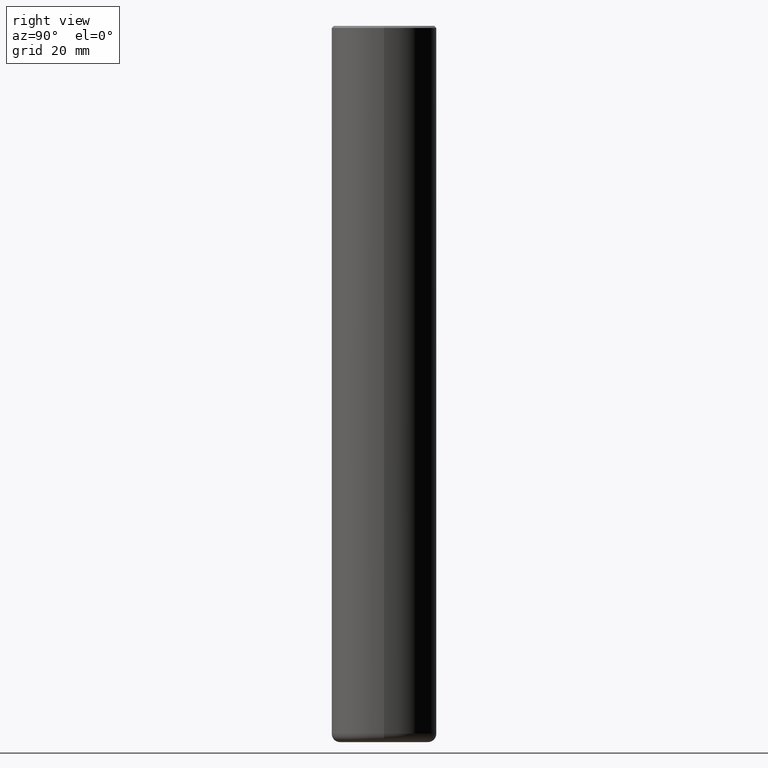
[diagram: clean part render]
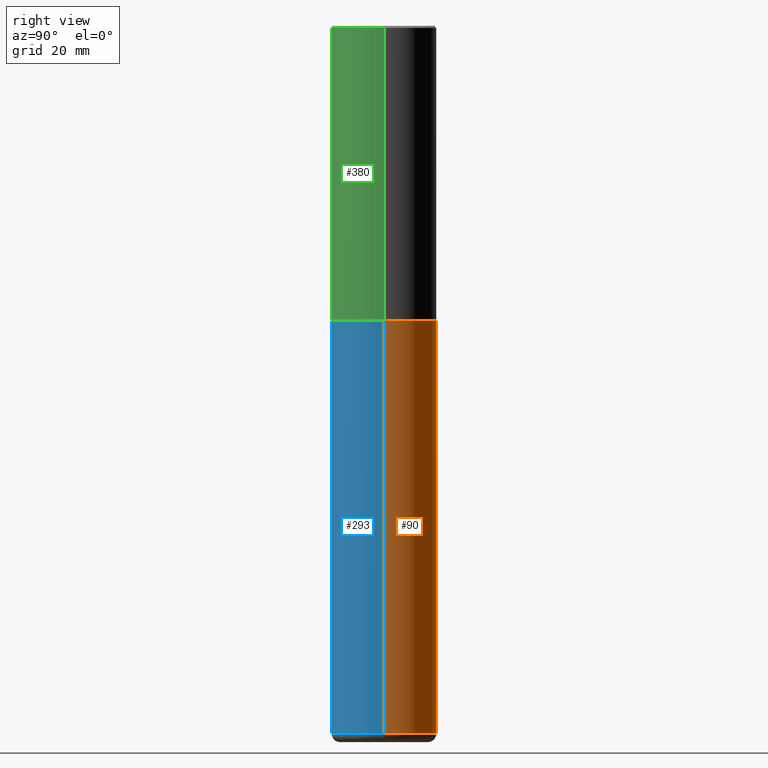
[diagram: same view with three faces highlighted in distinct colors, each labeled with its STEP entity id]
A machine part, right view with three faces highlighted in distinct colors.
Their STEP definitions:

[orange] entity #90 — the highlighted cylindrical surface (partial cylindrical patch) has radius 12.5006 mm, axis along (-0, 0, 1).
#8 = EDGE_CURVE ( 'NONE', #121, #273, #321, .T. ) ;
#33 = CARTESIAN_POINT ( 'NONE',  ( 0.4921499999999999764, -3.436665081823295777E-15, 2.399810400207969603E-29 ) ) ;
#37 = VECTOR ( 'NONE', #162, 39.37007874015748143 ) ;
#51 = VERTEX_POINT ( 'NONE', #272 ) ;
#54 = AXIS2_PLACEMENT_3D ( 'NONE', #365, #310, #303 ) ;
#65 = CARTESIAN_POINT ( 'NONE',  ( 6.739467482965618232E-29, -9.622173421717824390E-15, -2.755900000000000016 ) ) ;
#90 = ADVANCED_FACE ( 'NONE', ( #396 ), #265, .T. ) ;
#121 = VERTEX_POINT ( 'NONE', #234 ) ;
#126 = EDGE_CURVE ( 'NONE', #121, #51, #369, .T. ) ;
#127 = ORIENTED_EDGE ( 'NONE', *, *, #8, .F. ) ;
#155 = CARTESIAN_POINT ( 'NONE',  ( 0.4921499999999999764, -1.305883850354112017E-14, -2.755900000000000016 ) ) ;
#162 = DIRECTION ( 'NONE',  ( -2.445468806185136877E-29, 3.491481338843145188E-15, 1.000000000000000000 ) ) ;
#164 = DIRECTION ( 'NONE',  ( -2.445468806185136877E-29, 3.491481338843145188E-15, 1.000000000000000000 ) ) ;
#182 = ORIENTED_EDGE ( 'NONE', *, *, #126, .T. ) ;
#183 = DIRECTION ( 'NONE',  ( 1.000000000000000000, -6.982962677686265922E-15, 4.876176775795935793E-29 ) ) ;
#200 = LINE ( 'NONE', #356, #410 ) ;
#212 = DIRECTION ( 'NONE',  ( -2.445468806185136597E-29, 3.491481338843145583E-15, 1.000000000000000000 ) ) ;
#221 = EDGE_LOOP ( 'NONE', ( #182, #342, #266, #127 ) ) ;
#234 = CARTESIAN_POINT ( 'NONE',  ( 0.4921499999999998098, -2.653002095319962235E-14, -6.614199999999999413 ) ) ;
#237 = AXIS2_PLACEMENT_3D ( 'NONE', #263, #212, #183 ) ;
#255 = CARTESIAN_POINT ( 'NONE',  ( -0.4921499999999999764, -1.286082857250374574E-14, -2.755900000000000016 ) ) ;
#257 = DIRECTION ( 'NONE',  ( -2.445468806185136597E-29, 3.491481338843145583E-15, 1.000000000000000000 ) ) ;
#263 = CARTESIAN_POINT ( 'NONE',  ( 0.000000000000000000, 0.000000000000000000, 0.000000000000000000 ) ) ;
#265 = CYLINDRICAL_SURFACE ( 'NONE', #237, 0.4921499999999999764 ) ;
#266 = ORIENTED_EDGE ( 'NONE', *, *, #382, .F. ) ;
#272 = CARTESIAN_POINT ( 'NONE',  ( -0.4921499999999998098, -1.959641979733300078E-14, -6.614199999999999413 ) ) ;
#273 = VERTEX_POINT ( 'NONE', #155 ) ;
#286 = EDGE_CURVE ( 'NONE', #51, #308, #200, .T. ) ;
#303 = DIRECTION ( 'NONE',  ( 1.000000000000000000, -6.982962677686265133E-15, 0.000000000000000000 ) ) ;
#307 = AXIS2_PLACEMENT_3D ( 'NONE', #65, #257, #389 ) ;
#308 = VERTEX_POINT ( 'NONE', #255 ) ;
#310 = DIRECTION ( 'NONE',  ( -2.445468806185136597E-29, 3.491481338843145583E-15, 1.000000000000000000 ) ) ;
#321 = LINE ( 'NONE', #33, #37 ) ;
#342 = ORIENTED_EDGE ( 'NONE', *, *, #286, .T. ) ;
#356 = CARTESIAN_POINT ( 'NONE',  ( -0.4921499999999999764, 3.496936074043332897E-15, -2.420853904668951509E-29 ) ) ;
#365 = CARTESIAN_POINT ( 'NONE',  ( 1.617481977786973037E-28, -2.309335587137633131E-14, -6.614199999999999413 ) ) ;
#369 = CIRCLE ( 'NONE', #54, 0.4921500000000000319 ) ;
#382 = EDGE_CURVE ( 'NONE', #273, #308, #403, .T. ) ;
#389 = DIRECTION ( 'NONE',  ( 1.000000000000000000, -6.982962677686265922E-15, 0.000000000000000000 ) ) ;
#396 = FACE_OUTER_BOUND ( 'NONE', #221, .T. ) ;
#403 = CIRCLE ( 'NONE', #307, 0.4921499999999999764 ) ;
#410 = VECTOR ( 'NONE', #164, 39.37007874015748143 ) ;

[blue] entity #293 — the highlighted cylindrical surface (partial cylindrical patch) has radius 12.5006 mm, axis along (-0, 0, 1).
#5 = FACE_OUTER_BOUND ( 'NONE', #21, .T. ) ;
#8 = EDGE_CURVE ( 'NONE', #121, #273, #321, .T. ) ;
#21 = EDGE_LOOP ( 'NONE', ( #123, #277, #270, #112 ) ) ;
#33 = CARTESIAN_POINT ( 'NONE',  ( 0.4921499999999999764, -3.436665081823295777E-15, 2.399810400207969603E-29 ) ) ;
#37 = VECTOR ( 'NONE', #162, 39.37007874015748143 ) ;
#50 = CARTESIAN_POINT ( 'NONE',  ( 6.739467482965618232E-29, -9.622173421717824390E-15, -2.755900000000000016 ) ) ;
#51 = VERTEX_POINT ( 'NONE', #272 ) ;
#71 = DIRECTION ( 'NONE',  ( -2.445468806185136597E-29, 3.491481338843145583E-15, 1.000000000000000000 ) ) ;
#77 = DIRECTION ( 'NONE',  ( 1.000000000000000000, -6.982962677686265922E-15, 0.000000000000000000 ) ) ;
#107 = DIRECTION ( 'NONE',  ( -2.445468806185136597E-29, 3.491481338843145583E-15, 1.000000000000000000 ) ) ;
#110 = DIRECTION ( 'NONE',  ( 1.000000000000000000, -6.982962677686265922E-15, 4.876176775795935793E-29 ) ) ;
#112 = ORIENTED_EDGE ( 'NONE', *, *, #194, .F. ) ;
#121 = VERTEX_POINT ( 'NONE', #234 ) ;
#123 = ORIENTED_EDGE ( 'NONE', *, *, #286, .F. ) ;
#134 = AXIS2_PLACEMENT_3D ( 'NONE', #165, #107, #110 ) ;
#155 = CARTESIAN_POINT ( 'NONE',  ( 0.4921499999999999764, -1.305883850354112017E-14, -2.755900000000000016 ) ) ;
#162 = DIRECTION ( 'NONE',  ( -2.445468806185136877E-29, 3.491481338843145188E-15, 1.000000000000000000 ) ) ;
#164 = DIRECTION ( 'NONE',  ( -2.445468806185136877E-29, 3.491481338843145188E-15, 1.000000000000000000 ) ) ;
#165 = CARTESIAN_POINT ( 'NONE',  ( 0.000000000000000000, 0.000000000000000000, 0.000000000000000000 ) ) ;
#180 = DIRECTION ( 'NONE',  ( -2.445468806185136597E-29, 3.491481338843145583E-15, 1.000000000000000000 ) ) ;
#194 = EDGE_CURVE ( 'NONE', #308, #273, #300, .T. ) ;
#200 = LINE ( 'NONE', #356, #410 ) ;
#234 = CARTESIAN_POINT ( 'NONE',  ( 0.4921499999999998098, -2.653002095319962235E-14, -6.614199999999999413 ) ) ;
#255 = CARTESIAN_POINT ( 'NONE',  ( -0.4921499999999999764, -1.286082857250374574E-14, -2.755900000000000016 ) ) ;
#270 = ORIENTED_EDGE ( 'NONE', *, *, #8, .T. ) ;
#272 = CARTESIAN_POINT ( 'NONE',  ( -0.4921499999999998098, -1.959641979733300078E-14, -6.614199999999999413 ) ) ;
#273 = VERTEX_POINT ( 'NONE', #155 ) ;
#277 = ORIENTED_EDGE ( 'NONE', *, *, #288, .T. ) ;
#286 = EDGE_CURVE ( 'NONE', #51, #308, #200, .T. ) ;
#288 = EDGE_CURVE ( 'NONE', #51, #121, #336, .T. ) ;
#289 = DIRECTION ( 'NONE',  ( 1.000000000000000000, -6.982962677686265133E-15, 0.000000000000000000 ) ) ;
#293 = ADVANCED_FACE ( 'NONE', ( #5 ), #296, .T. ) ;
#296 = CYLINDRICAL_SURFACE ( 'NONE', #134, 0.4921499999999999764 ) ;
#300 = CIRCLE ( 'NONE', #351, 0.4921499999999999764 ) ;
#308 = VERTEX_POINT ( 'NONE', #255 ) ;
#321 = LINE ( 'NONE', #33, #37 ) ;
#327 = AXIS2_PLACEMENT_3D ( 'NONE', #384, #71, #289 ) ;
#336 = CIRCLE ( 'NONE', #327, 0.4921500000000000319 ) ;
#351 = AXIS2_PLACEMENT_3D ( 'NONE', #50, #180, #77 ) ;
#356 = CARTESIAN_POINT ( 'NONE',  ( -0.4921499999999999764, 3.496936074043332897E-15, -2.420853904668951509E-29 ) ) ;
#384 = CARTESIAN_POINT ( 'NONE',  ( 1.617481977786973037E-28, -2.309335587137633131E-14, -6.614199999999999413 ) ) ;
#410 = VECTOR ( 'NONE', #164, 39.37007874015748143 ) ;

[green] entity #380 — the highlighted cylindrical surface (partial cylindrical patch) has radius 12.5006 mm, axis along (-0, 0, 1).
#13 = EDGE_LOOP ( 'NONE', ( #281, #129, #350, #92 ) ) ;
#22 = DIRECTION ( 'NONE',  ( 1.000000000000000000, -6.982962677686265922E-15, 0.000000000000000000 ) ) ;
#40 = CARTESIAN_POINT ( 'NONE',  ( 0.000000000000000000, 0.000000000000000000, 0.000000000000000000 ) ) ;
#48 = CARTESIAN_POINT ( 'NONE',  ( -0.4921500000000003094, -1.347319709534586880E-15, -2.754900000000000126 ) ) ;
#61 = EDGE_CURVE ( 'NONE', #248, #244, #66, .T. ) ;
#66 = CIRCLE ( 'NONE', #124, 0.4921500000000000319 ) ;
#69 = CARTESIAN_POINT ( 'NONE',  ( 0.4921500000000003094, -1.305534702220228032E-14, -2.754900000000000126 ) ) ;
#73 = FACE_OUTER_BOUND ( 'NONE', #13, .T. ) ;
#86 = CARTESIAN_POINT ( 'NONE',  ( 4.890937612370299433E-31, -6.982962677686328587E-17, -0.02000000000000010797 ) ) ;
#92 = ORIENTED_EDGE ( 'NONE', *, *, #61, .F. ) ;
#97 = EDGE_CURVE ( 'NONE', #376, #244, #243, .T. ) ;
#101 = VECTOR ( 'NONE', #408, 39.37007874015748143 ) ;
#108 = CARTESIAN_POINT ( 'NONE',  ( -0.4921500000000001984, 3.496936074043334475E-15, -2.420853904668952630E-29 ) ) ;
#124 = AXIS2_PLACEMENT_3D ( 'NONE', #86, #236, #22 ) ;
#128 = CARTESIAN_POINT ( 'NONE',  ( -0.4921500000000000319, 3.366835455046432873E-15, -0.02000000000000010797 ) ) ;
#129 = ORIENTED_EDGE ( 'NONE', *, *, #383, .T. ) ;
#137 = LINE ( 'NONE', #108, #291 ) ;
#167 = DIRECTION ( 'NONE',  ( 1.000000000000000000, -6.982962677686265922E-15, 0.000000000000000000 ) ) ;
#173 = VERTEX_POINT ( 'NONE', #48 ) ;
#195 = DIRECTION ( 'NONE',  ( -2.445468806185136597E-29, 3.491481338843145583E-15, 1.000000000000000000 ) ) ;
#223 = CIRCLE ( 'NONE', #388, 0.4921500000000003094 ) ;
#226 = DIRECTION ( 'NONE',  ( -2.445468806185136877E-29, 3.491481338843145188E-15, 1.000000000000000000 ) ) ;
#236 = DIRECTION ( 'NONE',  ( -2.445468806185136597E-29, 3.491481338843145583E-15, 1.000000000000000000 ) ) ;
#243 = LINE ( 'NONE', #338, #101 ) ;
#244 = VERTEX_POINT ( 'NONE', #283 ) ;
#248 = VERTEX_POINT ( 'NONE', #128 ) ;
#253 = CYLINDRICAL_SURFACE ( 'NONE', #280, 0.4921500000000001984 ) ;
#280 = AXIS2_PLACEMENT_3D ( 'NONE', #40, #326, #352 ) ;
#281 = ORIENTED_EDGE ( 'NONE', *, *, #333, .F. ) ;
#283 = CARTESIAN_POINT ( 'NONE',  ( 0.4921500000000000319, -3.446223716380123138E-15, -0.02000000000000010797 ) ) ;
#291 = VECTOR ( 'NONE', #226, 39.37007874015748143 ) ;
#326 = DIRECTION ( 'NONE',  ( -2.445468806185136597E-29, 3.491481338843145583E-15, 1.000000000000000000 ) ) ;
#333 = EDGE_CURVE ( 'NONE', #173, #248, #137, .T. ) ;
#338 = CARTESIAN_POINT ( 'NONE',  ( 0.4921500000000001984, -3.436665081823297354E-15, 2.399810400207970443E-29 ) ) ;
#350 = ORIENTED_EDGE ( 'NONE', *, *, #97, .T. ) ;
#352 = DIRECTION ( 'NONE',  ( 1.000000000000000000, -6.982962677686266711E-15, 4.876176775795935232E-29 ) ) ;
#376 = VERTEX_POINT ( 'NONE', #69 ) ;
#380 = ADVANCED_FACE ( 'NONE', ( #73 ), #253, .T. ) ;
#383 = EDGE_CURVE ( 'NONE', #173, #376, #223, .T. ) ;
#388 = AXIS2_PLACEMENT_3D ( 'NONE', #391, #195, #167 ) ;
#391 = CARTESIAN_POINT ( 'NONE',  ( 6.737022014159432629E-29, -9.618681940378981383E-15, -2.754900000000000126 ) ) ;
#408 = DIRECTION ( 'NONE',  ( -2.445468806185136877E-29, 3.491481338843145188E-15, 1.000000000000000000 ) ) ;